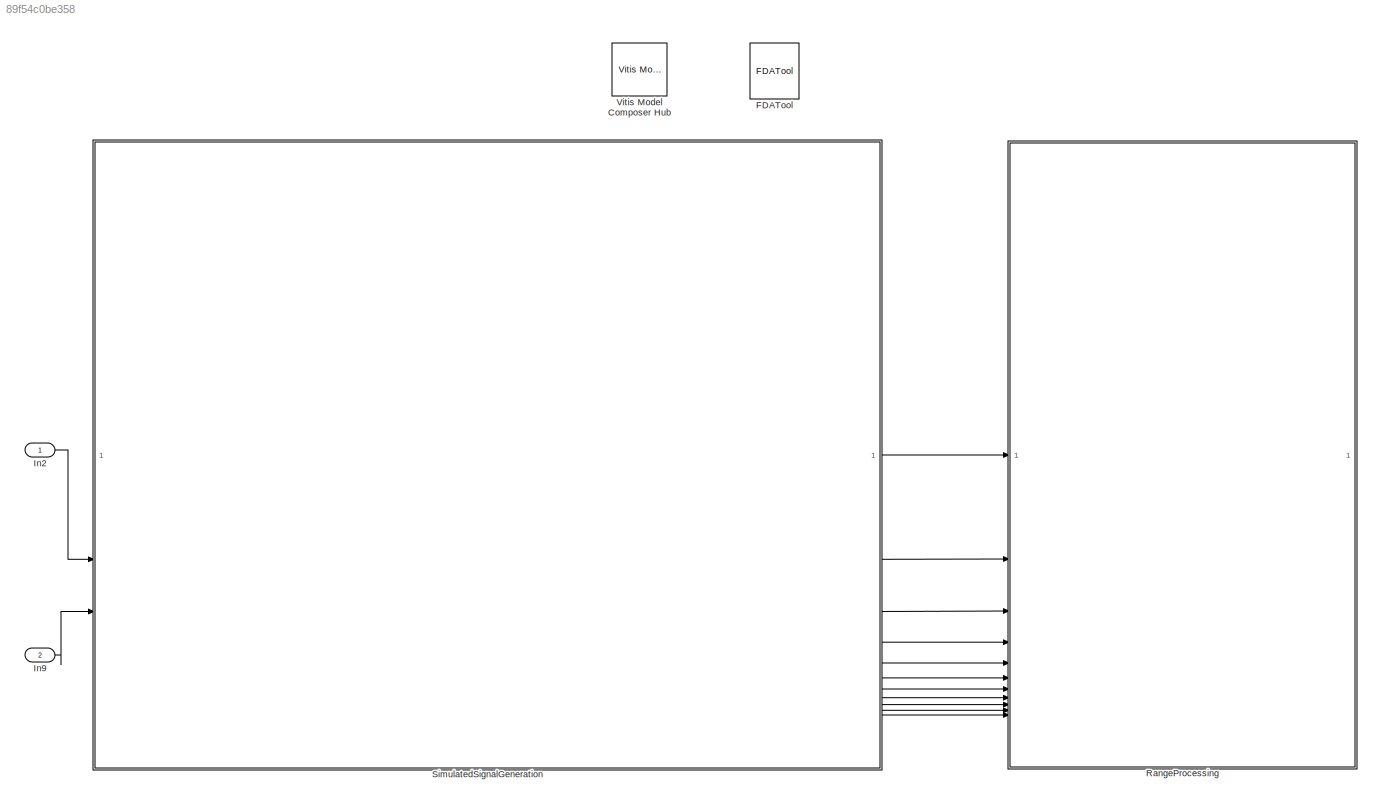
MODEL slx_89f54c0be358
KIND model
CONFIG AbsTol = auto
CONFIG EnableMultiTasking = off
CONFIG FixedStep = auto
CONFIG MaxStep = auto
CONFIG MinStep = auto
CONFIG RelTol = 1e-3
CONFIG SampleTimeConstraint = Unconstrained
CONFIG SolverName = VariableStepAuto
CONFIG StartTime = 0.0
CONFIG StopTime = 0.001
BLOCK [Reference] FDATool  REF=hdlUtilities/FDATool
  SourceBlock = hdlUtilities/FDATool
  SourceType = Xilinx FDATool Interface Block
  UserDataPersistent = on
BLOCK [Inport] In2
BLOCK [Inport] In9
  Port = 2
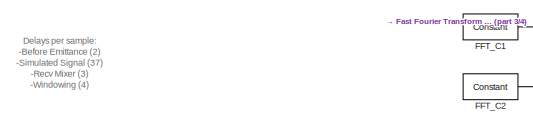
[diagram: RangeProcessing - part 1/4, top center region]
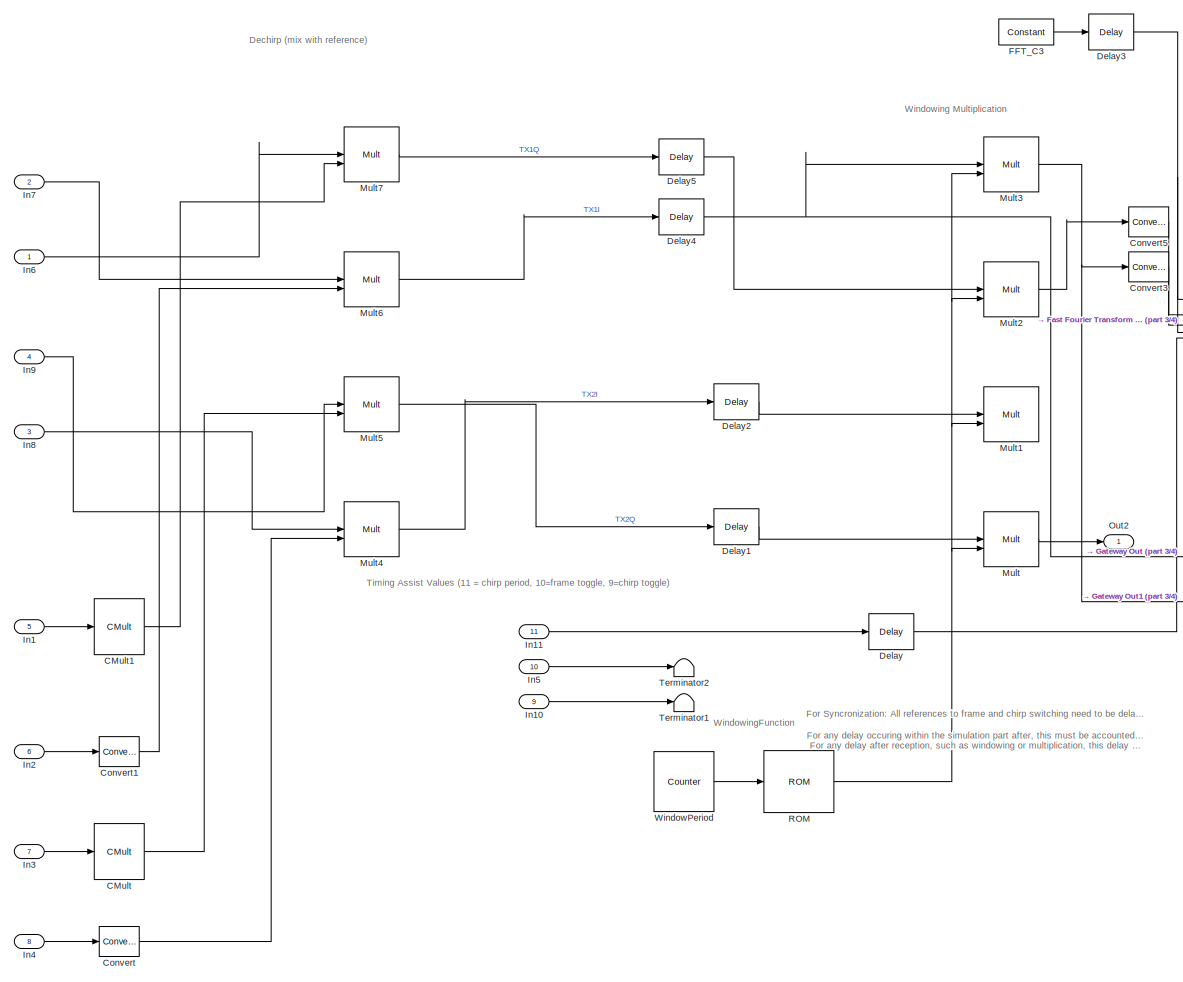
[diagram: RangeProcessing - part 2/4, left side, full height]
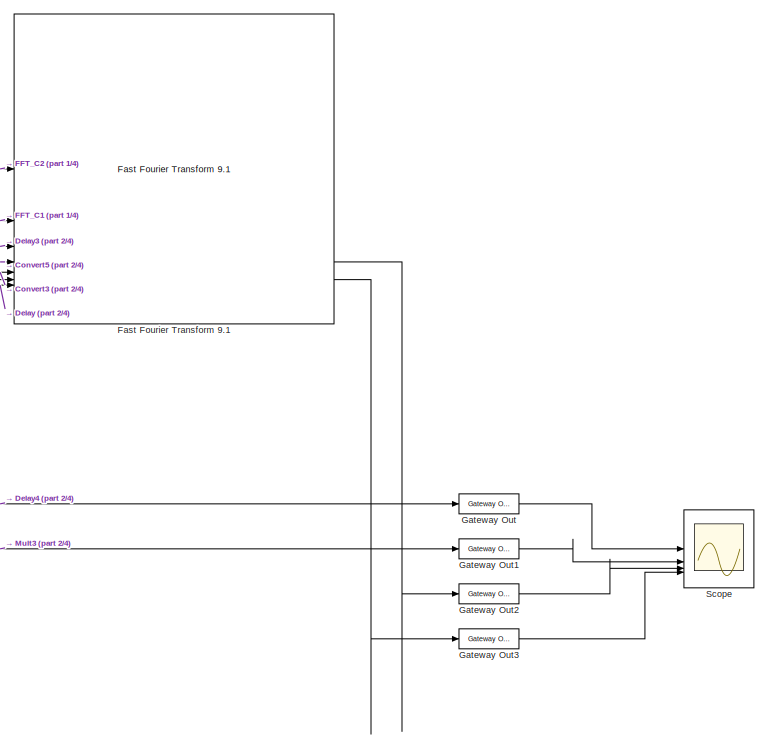
[diagram: RangeProcessing - part 3/4, middle right region]
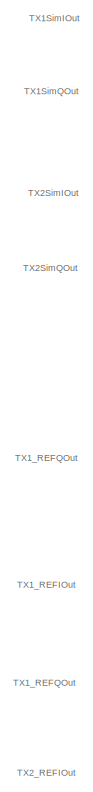
[diagram: RangeProcessing - part 4/4, middle left region]
BLOCK [SubSystem] RangeProcessing
BLOCK [Reference] RangeProcessing/CMult  REF=hdlBasic/CMult
  SourceBlock = hdlBasic/CMult
  SourceType = Constant Multiplier Block
BLOCK [Reference] RangeProcessing/CMult1  REF=hdlBasic/CMult
  SourceBlock = hdlBasic/CMult
  SourceType = Constant Multiplier Block
BLOCK [Reference] RangeProcessing/Convert  REF=hdlBasic/Convert
  SourceBlock = hdlBasic/Convert
  SourceType = Type Converter Block
BLOCK [Reference] RangeProcessing/Convert1  REF=hdlBasic/Convert
  SourceBlock = hdlBasic/Convert
  SourceType = Type Converter Block
BLOCK [Reference] RangeProcessing/Convert3  REF=hdlBasic/Convert
  SourceBlock = hdlBasic/Convert
  SourceType = Type Converter Block
BLOCK [Reference] RangeProcessing/Convert5  REF=hdlBasic/Convert
  SourceBlock = hdlBasic/Convert
  SourceType = Type Converter Block
BLOCK [Reference] RangeProcessing/Delay  REF=hdlBasic/Delay
  SourceBlock = hdlBasic/Delay
  SourceType = Delay Block
BLOCK [Reference] RangeProcessing/Delay1  REF=hdlBasic/Delay
  SourceBlock = hdlBasic/Delay
  SourceType = Delay Block
BLOCK [Reference] RangeProcessing/Delay2  REF=hdlBasic/Delay
  SourceBlock = hdlBasic/Delay
  SourceType = Delay Block
BLOCK [Reference] RangeProcessing/Delay3  REF=hdlBasic/Delay
  SourceBlock = hdlBasic/Delay
  SourceType = Delay Block
BLOCK [Reference] RangeProcessing/Delay4  REF=hdlBasic/Delay
  SourceBlock = hdlBasic/Delay
  SourceType = Delay Block
BLOCK [Reference] RangeProcessing/Delay5  REF=hdlBasic/Delay
  SourceBlock = hdlBasic/Delay
  SourceType = Delay Block
BLOCK [Reference] RangeProcessing/FFT_C1  REF=hdlBasic/Constant
  SourceBlock = hdlBasic/Constant
  SourceType = Constant Block Block
BLOCK [Reference] RangeProcessing/FFT_C2  REF=hdlBasic/Constant
  SourceBlock = hdlBasic/Constant
  SourceType = Constant Block Block
BLOCK [Reference] RangeProcessing/FFT_C3  REF=hdlBasic/Constant
  SourceBlock = hdlBasic/Constant
  SourceType = Constant Block Block
BLOCK [Reference] RangeProcessing/Fast Fourier Transform 9.1  REF=hdlDSPIP/Fast Fourier Transform 9.1 
  SourceBlock = hdlDSPIP/Fast Fourier Transform 9.1
  SourceType = Fast Fourier Transform 9.1  Block
BLOCK [Reference] RangeProcessing/Gateway Out  REF=hdlBasic/Gateway Out
  SourceBlock = hdlBasic/Gateway Out
  SourceType = Gateway Out Block
BLOCK [Reference] RangeProcessing/Gateway Out1  REF=hdlBasic/Gateway Out
  SourceBlock = hdlBasic/Gateway Out
  SourceType = Gateway Out Block
BLOCK [Reference] RangeProcessing/Gateway Out2  REF=hdlBasic/Gateway Out
  SourceBlock = hdlBasic/Gateway Out
  SourceType = Gateway Out Block
BLOCK [Reference] RangeProcessing/Gateway Out3  REF=hdlBasic/Gateway Out
  SourceBlock = hdlBasic/Gateway Out
  SourceType = Gateway Out Block
BLOCK [Inport] RangeProcessing/In1
  Port = 5
BLOCK [Inport] RangeProcessing/In10
  Port = 9
BLOCK [Inport] RangeProcessing/In11
  Port = 11
BLOCK [Inport] RangeProcessing/In2
  Port = 6
BLOCK [Inport] RangeProcessing/In3
  Port = 7
BLOCK [Inport] RangeProcessing/In4
  Port = 8
BLOCK [Inport] RangeProcessing/In5
  Port = 10
BLOCK [Inport] RangeProcessing/In6
BLOCK [Inport] RangeProcessing/In7
  Port = 2
BLOCK [Inport] RangeProcessing/In8
  Port = 3
BLOCK [Inport] RangeProcessing/In9
  Port = 4
BLOCK [Reference] RangeProcessing/Mult  REF=hdlBasic/Mult
  SourceBlock = hdlBasic/Mult
  SourceType = Multiplier Block
BLOCK [Reference] RangeProcessing/Mult1  REF=hdlBasic/Mult
  SourceBlock = hdlBasic/Mult
  SourceType = Multiplier Block
BLOCK [Reference] RangeProcessing/Mult2  REF=hdlBasic/Mult
  SourceBlock = hdlBasic/Mult
  SourceType = Multiplier Block
BLOCK [Reference] RangeProcessing/Mult3  REF=hdlBasic/Mult
  SourceBlock = hdlBasic/Mult
  SourceType = Multiplier Block
BLOCK [Reference] RangeProcessing/Mult4  REF=hdlBasic/Mult
  SourceBlock = hdlBasic/Mult
  SourceType = Multiplier Block
BLOCK [Reference] RangeProcessing/Mult5  REF=hdlBasic/Mult
  SourceBlock = hdlBasic/Mult
  SourceType = Multiplier Block
BLOCK [Reference] RangeProcessing/Mult6  REF=hdlBasic/Mult
  SourceBlock = hdlBasic/Mult
  SourceType = Multiplier Block
BLOCK [Reference] RangeProcessing/Mult7  REF=hdlBasic/Mult
  SourceBlock = hdlBasic/Mult
  SourceType = Multiplier Block
BLOCK [Outport] RangeProcessing/Out2
BLOCK [Reference] RangeProcessing/ROM  REF=hdlBasic/ROM
  SourceBlock = hdlBasic/ROM
  SourceType = Single Port Read-Only Memory Block
BLOCK [Scope] RangeProcessing/Scope
  Floating = off
  NumInputPorts = 4
  ScopeSpecificationString = Simulink.scopes.TimeScopeBlockCfg('CurrentConfiguration', extmgr.ConfigurationSet(extmgr.Configuration('Core','General UI',true),extmgr.Configuration('Core','Source UI',true),extmgr.Configuration('Sources','WiredSimulink',true),extmgr.Configuration('Visuals','Time Domain',true,'SerializedDisplays',{struct('MinYLimReal','-1.24977','MaxYLimReal','1.24977','YLabelReal','','MinYLimMag','0.00000','MaxY...<+4192ch>
BLOCK [Terminator] RangeProcessing/Terminator1
BLOCK [Terminator] RangeProcessing/Terminator2
BLOCK [Reference] RangeProcessing/WindowPeriod  REF=hdlBasic/Counter
  SourceBlock = hdlBasic/Counter
  SourceType = Counter Block
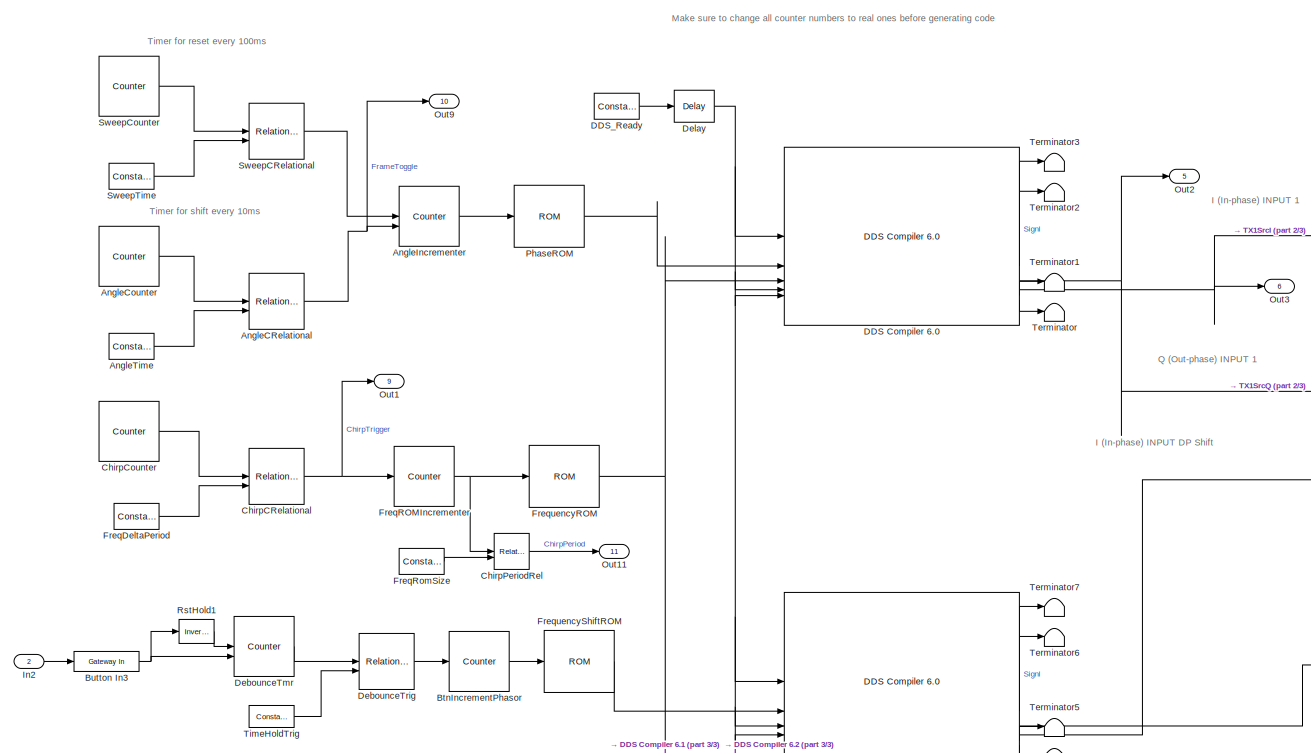
[diagram: SimulatedSignalGeneration - part 1/3, middle left region]
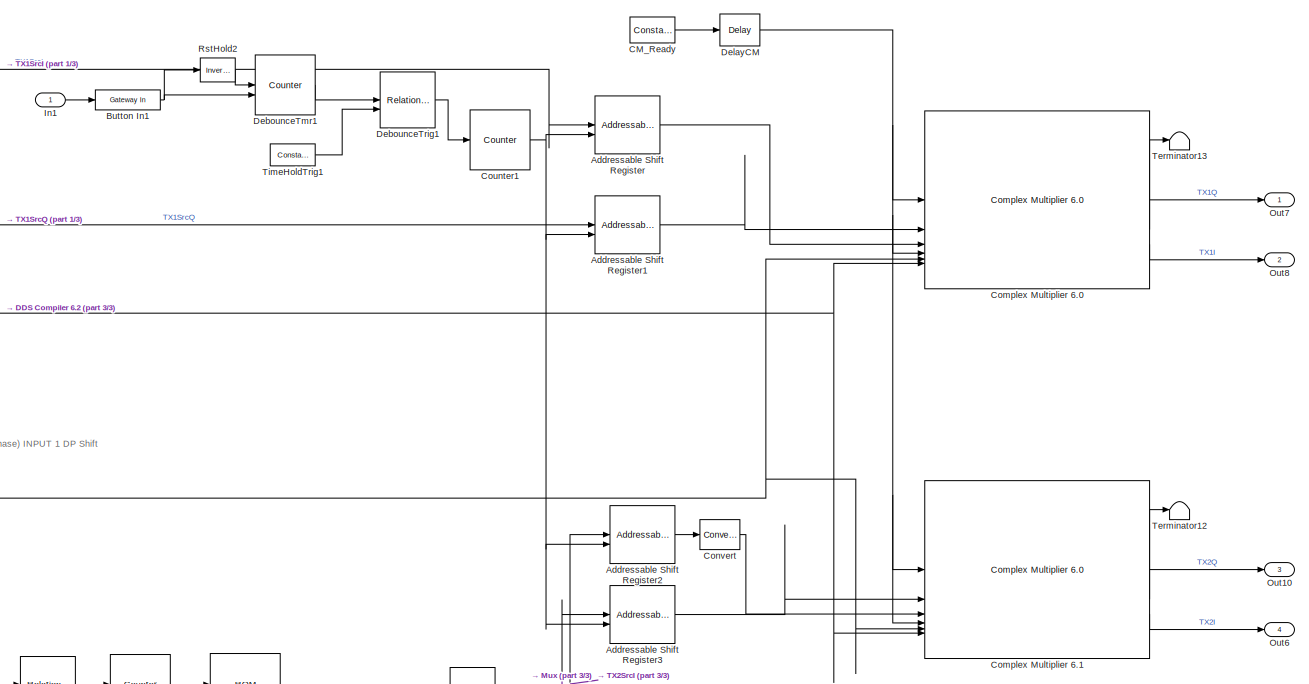
[diagram: SimulatedSignalGeneration - part 2/3, middle right region]
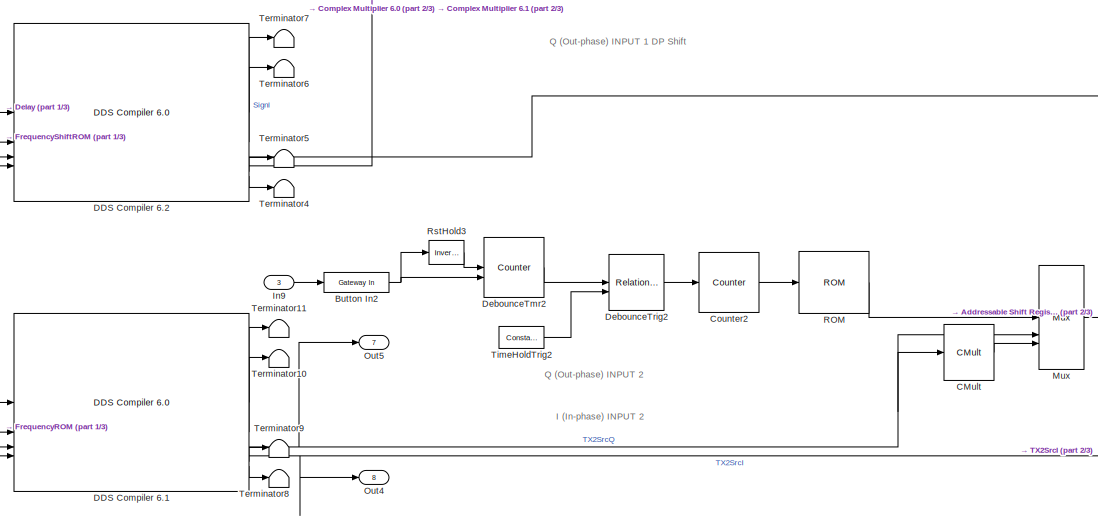
[diagram: SimulatedSignalGeneration - part 3/3, bottom center region]
BLOCK [SubSystem] SimulatedSignalGeneration
  SystemSampleTime = 1/200e6
BLOCK [Reference] SimulatedSignalGeneration/Addressable Shift Register  REF=hdlBasic/Addressable Shift Register
  SourceBlock = hdlBasic/Addressable Shift Register
  SourceType = Addressable Shift Register Block
BLOCK [Reference] SimulatedSignalGeneration/Addressable Shift Register1  REF=hdlBasic/Addressable Shift Register
  SourceBlock = hdlBasic/Addressable Shift Register
  SourceType = Addressable Shift Register Block
BLOCK [Reference] SimulatedSignalGeneration/Addressable Shift Register2  REF=hdlBasic/Addressable Shift Register
  SourceBlock = hdlBasic/Addressable Shift Register
  SourceType = Addressable Shift Register Block
BLOCK [Reference] SimulatedSignalGeneration/Addressable Shift Register3  REF=hdlBasic/Addressable Shift Register
  SourceBlock = hdlBasic/Addressable Shift Register
  SourceType = Addressable Shift Register Block
BLOCK [Reference] SimulatedSignalGeneration/AngleCRelational  REF=hdlBasic/Relational
  SourceBlock = hdlBasic/Relational
  SourceType = Arithmetic Relational Operator Block
BLOCK [Reference] SimulatedSignalGeneration/AngleCounter  REF=hdlBasic/Counter
  SourceBlock = hdlBasic/Counter
  SourceType = Counter Block
BLOCK [Reference] SimulatedSignalGeneration/AngleIncrementer  REF=hdlBasic/Counter
  SourceBlock = hdlBasic/Counter
  SourceType = Counter Block
BLOCK [Reference] SimulatedSignalGeneration/AngleTime  REF=hdlBasic/Constant
  SourceBlock = hdlBasic/Constant
  SourceType = Constant Block Block
BLOCK [Reference] SimulatedSignalGeneration/BtnIncrementPhasor  REF=hdlBasic/Counter
  SourceBlock = hdlBasic/Counter
  SourceType = Counter Block
BLOCK [Reference] SimulatedSignalGeneration/Button In1  REF=hdlBasic/Gateway In
  SourceBlock = hdlBasic/Gateway In
  SourceType = Gateway In Block
BLOCK [Reference] SimulatedSignalGeneration/Button In2  REF=hdlBasic/Gateway In
  SourceBlock = hdlBasic/Gateway In
  SourceType = Gateway In Block
BLOCK [Reference] SimulatedSignalGeneration/Button In3  REF=hdlBasic/Gateway In
  SourceBlock = hdlBasic/Gateway In
  SourceType = Gateway In Block
BLOCK [Reference] SimulatedSignalGeneration/CM_Ready  REF=hdlBasic/Constant
  SourceBlock = hdlBasic/Constant
  SourceType = Constant Block Block
BLOCK [Reference] SimulatedSignalGeneration/CMult  REF=hdlBasic/CMult
  SourceBlock = hdlBasic/CMult
  SourceType = Constant Multiplier Block
BLOCK [Reference] SimulatedSignalGeneration/ChirpCRelational  REF=hdlBasic/Relational
  SourceBlock = hdlBasic/Relational
  SourceType = Arithmetic Relational Operator Block
BLOCK [Reference] SimulatedSignalGeneration/ChirpCounter  REF=hdlBasic/Counter
  SourceBlock = hdlBasic/Counter
  SourceType = Counter Block
BLOCK [Reference] SimulatedSignalGeneration/ChirpPeriodRel  REF=hdlBasic/Relational
  SourceBlock = hdlBasic/Relational
  SourceType = Arithmetic Relational Operator Block
BLOCK [Reference] SimulatedSignalGeneration/Complex Multiplier 6.0  REF=hdlDSPIP/Complex Multiplier 6.0 
  SourceBlock = hdlDSPIP/Complex Multiplier 6.0
  SourceType = Complex Multiplier 6.0  Block
BLOCK [Reference] SimulatedSignalGeneration/Complex Multiplier 6.1  REF=hdlDSPIP/Complex Multiplier 6.0 
  SourceBlock = hdlDSPIP/Complex Multiplier 6.0
  SourceType = Complex Multiplier 6.0  Block
BLOCK [Reference] SimulatedSignalGeneration/Convert  REF=hdlBasic/Convert
  SourceBlock = hdlBasic/Convert
  SourceType = Type Converter Block
BLOCK [Reference] SimulatedSignalGeneration/Counter1  REF=hdlBasic/Counter
  SourceBlock = hdlBasic/Counter
  SourceType = Counter Block
BLOCK [Reference] SimulatedSignalGeneration/Counter2  REF=hdlBasic/Counter
  SourceBlock = hdlBasic/Counter
  SourceType = Counter Block
BLOCK [Reference] SimulatedSignalGeneration/DDS Compiler 6.0  REF=hdlDSPIP/DDS Compiler 6.0 
  SourceBlock = hdlDSPIP/DDS Compiler 6.0
  SourceType = DDS Compiler 6.0 Block
BLOCK [Reference] SimulatedSignalGeneration/DDS Compiler 6.1  REF=hdlDSPIP/DDS Compiler 6.0 
  SourceBlock = hdlDSPIP/DDS Compiler 6.0
  SourceType = DDS Compiler 6.0 Block
BLOCK [Reference] SimulatedSignalGeneration/DDS Compiler 6.2  REF=hdlDSPIP/DDS Compiler 6.0 
  SourceBlock = hdlDSPIP/DDS Compiler 6.0
  SourceType = DDS Compiler 6.0 Block
BLOCK [Reference] SimulatedSignalGeneration/DDS_Ready  REF=hdlBasic/Constant
  SourceBlock = hdlBasic/Constant
  SourceType = Constant Block Block
BLOCK [Reference] SimulatedSignalGeneration/DebounceTmr  REF=hdlBasic/Counter
  SourceBlock = hdlBasic/Counter
  SourceType = Counter Block
BLOCK [Reference] SimulatedSignalGeneration/DebounceTmr1  REF=hdlBasic/Counter
  SourceBlock = hdlBasic/Counter
  SourceType = Counter Block
BLOCK [Reference] SimulatedSignalGeneration/DebounceTmr2  REF=hdlBasic/Counter
  SourceBlock = hdlBasic/Counter
  SourceType = Counter Block
BLOCK [Reference] SimulatedSignalGeneration/DebounceTrig  REF=hdlBasic/Relational
  SourceBlock = hdlBasic/Relational
  SourceType = Arithmetic Relational Operator Block
BLOCK [Reference] SimulatedSignalGeneration/DebounceTrig1  REF=hdlBasic/Relational
  SourceBlock = hdlBasic/Relational
  SourceType = Arithmetic Relational Operator Block
BLOCK [Reference] SimulatedSignalGeneration/DebounceTrig2  REF=hdlBasic/Relational
  SourceBlock = hdlBasic/Relational
  SourceType = Arithmetic Relational Operator Block
BLOCK [Reference] SimulatedSignalGeneration/Delay  REF=hdlBasic/Delay
  SourceBlock = hdlBasic/Delay
  SourceType = Delay Block
BLOCK [Reference] SimulatedSignalGeneration/DelayCM  REF=hdlBasic/Delay
  SourceBlock = hdlBasic/Delay
  SourceType = Delay Block
BLOCK [Reference] SimulatedSignalGeneration/FreqDeltaPeriod  REF=hdlBasic/Constant
  SourceBlock = hdlBasic/Constant
  SourceType = Constant Block Block
BLOCK [Reference] SimulatedSignalGeneration/FreqROMIncrementer  REF=hdlBasic/Counter
  SourceBlock = hdlBasic/Counter
  SourceType = Counter Block
BLOCK [Reference] SimulatedSignalGeneration/FreqRomSize  REF=hdlBasic/Constant
  SourceBlock = hdlBasic/Constant
  SourceType = Constant Block Block
BLOCK [Reference] SimulatedSignalGeneration/FrequencyROM  REF=hdlBasic/ROM
  SourceBlock = hdlBasic/ROM
  SourceType = Single Port Read-Only Memory Block
BLOCK [Reference] SimulatedSignalGeneration/FrequencyShiftROM  REF=hdlBasic/ROM
  SourceBlock = hdlBasic/ROM
  SourceType = Single Port Read-Only Memory Block
BLOCK [Inport] SimulatedSignalGeneration/In1
BLOCK [Inport] SimulatedSignalGeneration/In2
  Port = 2
BLOCK [Inport] SimulatedSignalGeneration/In9
  Port = 3
BLOCK [Reference] SimulatedSignalGeneration/Mux  REF=hdlBasic/Mux
  SourceBlock = hdlBasic/Mux
  SourceType = Bus Multiplexer Block
BLOCK [Outport] SimulatedSignalGeneration/Out1
  Port = 9
BLOCK [Outport] SimulatedSignalGeneration/Out10
  Port = 3
BLOCK [Outport] SimulatedSignalGeneration/Out11
  Port = 11
BLOCK [Outport] SimulatedSignalGeneration/Out2
  Port = 5
BLOCK [Outport] SimulatedSignalGeneration/Out3
  Port = 6
BLOCK [Outport] SimulatedSignalGeneration/Out4
  Port = 8
BLOCK [Outport] SimulatedSignalGeneration/Out5
  Port = 7
BLOCK [Outport] SimulatedSignalGeneration/Out6
  Port = 4
BLOCK [Outport] SimulatedSignalGeneration/Out7
BLOCK [Outport] SimulatedSignalGeneration/Out8
  Port = 2
BLOCK [Outport] SimulatedSignalGeneration/Out9
  Port = 10
BLOCK [Reference] SimulatedSignalGeneration/PhaseROM  REF=hdlBasic/ROM
  SourceBlock = hdlBasic/ROM
  SourceType = Single Port Read-Only Memory Block
BLOCK [Reference] SimulatedSignalGeneration/ROM  REF=hdlBasic/ROM
  SourceBlock = hdlBasic/ROM
  SourceType = Single Port Read-Only Memory Block
BLOCK [Reference] SimulatedSignalGeneration/RstHold1  REF=hdlBasic/Inverter
  SourceBlock = hdlBasic/Inverter
  SourceType = Inverter Block
BLOCK [Reference] SimulatedSignalGeneration/RstHold2  REF=hdlBasic/Inverter
  SourceBlock = hdlBasic/Inverter
  SourceType = Inverter Block
BLOCK [Reference] SimulatedSignalGeneration/RstHold3  REF=hdlBasic/Inverter
  SourceBlock = hdlBasic/Inverter
  SourceType = Inverter Block
BLOCK [Reference] SimulatedSignalGeneration/SweepCRelational  REF=hdlBasic/Relational
  SourceBlock = hdlBasic/Relational
  SourceType = Arithmetic Relational Operator Block
BLOCK [Reference] SimulatedSignalGeneration/SweepCounter  REF=hdlBasic/Counter
  SourceBlock = hdlBasic/Counter
  SourceType = Counter Block
BLOCK [Reference] SimulatedSignalGeneration/SweepTime  REF=hdlBasic/Constant
  SourceBlock = hdlBasic/Constant
  SourceType = Constant Block Block
BLOCK [Terminator] SimulatedSignalGeneration/Terminator
BLOCK [Terminator] SimulatedSignalGeneration/Terminator1
BLOCK [Terminator] SimulatedSignalGeneration/Terminator10
BLOCK [Terminator] SimulatedSignalGeneration/Terminator11
BLOCK [Terminator] SimulatedSignalGeneration/Terminator12
BLOCK [Terminator] SimulatedSignalGeneration/Terminator13
BLOCK [Terminator] SimulatedSignalGeneration/Terminator2
BLOCK [Terminator] SimulatedSignalGeneration/Terminator3
BLOCK [Terminator] SimulatedSignalGeneration/Terminator4
BLOCK [Terminator] SimulatedSignalGeneration/Terminator5
BLOCK [Terminator] SimulatedSignalGeneration/Terminator6
BLOCK [Terminator] SimulatedSignalGeneration/Terminator7
BLOCK [Terminator] SimulatedSignalGeneration/Terminator8
BLOCK [Terminator] SimulatedSignalGeneration/Terminator9
BLOCK [Reference] SimulatedSignalGeneration/TimeHoldTrig  REF=hdlBasic/Constant
  SourceBlock = hdlBasic/Constant
  SourceType = Constant Block Block
BLOCK [Reference] SimulatedSignalGeneration/TimeHoldTrig1  REF=hdlBasic/Constant
  SourceBlock = hdlBasic/Constant
  SourceType = Constant Block Block
BLOCK [Reference] SimulatedSignalGeneration/TimeHoldTrig2  REF=hdlBasic/Constant
  SourceBlock = hdlBasic/Constant
  SourceType = Constant Block Block
BLOCK [Reference] Vitis Model Composer Hub  REF=vmcUtilities/Vitis Model Composer Hub
  SourceBlock = vmcUtilities/Vitis Model Composer Hub
  SourceType = VMC Hub
  Tag = genX
  UserDataPersistent = on
ANNOTATION RangeProcessing: Delays per sample: -Before Emittance (2) -Simulated Signal (37) -Recv Mixer (3) -Windowing (4)
ANNOTATION RangeProcessing: Dechirp (mix with reference)
ANNOTATION RangeProcessing: For Syncronization: All references to frame and chirp switching need to be delayed only by the amount of delay between when it is called to toggle, and when it leaves the radar system. For any delay occuring within the simulation part after, this must be accounted for in the addressable shift register (delay) which simulates range delay. This delay has nothing to do with determinng when a chirp or...<+398ch>
ANNOTATION RangeProcessing: TX1SimIOut
ANNOTATION RangeProcessing: TX1SimQOut
ANNOTATION RangeProcessing: TX1_REFIOut
ANNOTATION RangeProcessing: TX1_REFQOut
ANNOTATION RangeProcessing: TX2SimIOut
ANNOTATION RangeProcessing: TX2SimQOut
ANNOTATION RangeProcessing: TX2_REFIOut
ANNOTATION RangeProcessing: Timing Assist Values (11 = chirp period, 10=frame toggle, 9=chirp toggle)
ANNOTATION RangeProcessing: Windowing Multiplication
ANNOTATION RangeProcessing: WindowingFunction
ANNOTATION SimulatedSignalGeneration: Make sure to change all counter numbers to real ones before generating code
ANNOTATION SimulatedSignalGeneration: I (In-phase) INPUT 1
ANNOTATION SimulatedSignalGeneration: I (In-phase) INPUT 2
ANNOTATION SimulatedSignalGeneration: I (In-phase) INPUT DP Shift
ANNOTATION SimulatedSignalGeneration: Q (Out-phase) INPUT 1
ANNOTATION SimulatedSignalGeneration: Q (Out-phase) INPUT 1 DP Shift
ANNOTATION SimulatedSignalGeneration: Q (Out-phase) INPUT 2
ANNOTATION SimulatedSignalGeneration: Timer for reset every 100ms
ANNOTATION SimulatedSignalGeneration: Timer for shift every 10ms
LINE In2:1 -> SimulatedSignalGeneration:2
LINE In9:1 -> SimulatedSignalGeneration:3
LINE RangeProcessing/CMult1:1 -> RangeProcessing/Mult7:2
LINE RangeProcessing/CMult:1 -> RangeProcessing/Mult5:2
LINE RangeProcessing/Convert1:1 -> RangeProcessing/Mult6:2
LINE RangeProcessing/Convert3:1 -> RangeProcessing/Fast Fourier Transform 9.1:5
LINE RangeProcessing/Convert5:1 -> RangeProcessing/Fast Fourier Transform 9.1:4
LINE RangeProcessing/Convert:1 -> RangeProcessing/Mult4:2
LINE RangeProcessing/Delay1:1 -> RangeProcessing/Mult:1
LINE RangeProcessing/Delay2:1 -> RangeProcessing/Mult1:1
NET RangeProcessing/Delay3:1 -> RangeProcessing/Fast Fourier Transform 9.1:3, RangeProcessing/Fast Fourier Transform 9.1:6
NET RangeProcessing/Delay4:1 -> RangeProcessing/Gateway Out:1, RangeProcessing/Mult3:1
LINE RangeProcessing/Delay5:1 -> RangeProcessing/Mult2:1
LINE RangeProcessing/Delay:1 -> RangeProcessing/Fast Fourier Transform 9.1:7
LINE RangeProcessing/FFT_C1:1 -> RangeProcessing/Fast Fourier Transform 9.1:2
LINE RangeProcessing/FFT_C2:1 -> RangeProcessing/Fast Fourier Transform 9.1:1
LINE RangeProcessing/FFT_C3:1 -> RangeProcessing/Delay3:1
LINE RangeProcessing/Fast Fourier Transform 9.1:4 -> RangeProcessing/Gateway Out2:1
LINE RangeProcessing/Fast Fourier Transform 9.1:6 -> RangeProcessing/Gateway Out3:1
LINE RangeProcessing/Gateway Out1:1 -> RangeProcessing/Scope:2
LINE RangeProcessing/Gateway Out2:1 -> RangeProcessing/Scope:3
LINE RangeProcessing/Gateway Out3:1 -> RangeProcessing/Scope:4
LINE RangeProcessing/Gateway Out:1 -> RangeProcessing/Scope:1
LINE RangeProcessing/In10:1 -> RangeProcessing/Terminator1:1
LINE RangeProcessing/In11:1 -> RangeProcessing/Delay:1
LINE RangeProcessing/In1:1 -> RangeProcessing/CMult1:1
LINE RangeProcessing/In2:1 -> RangeProcessing/Convert1:1
LINE RangeProcessing/In3:1 -> RangeProcessing/CMult:1
LINE RangeProcessing/In4:1 -> RangeProcessing/Convert:1
LINE RangeProcessing/In5:1 -> RangeProcessing/Terminator2:1
LINE RangeProcessing/In6:1 -> RangeProcessing/Mult7:1
LINE RangeProcessing/In7:1 -> RangeProcessing/Mult6:1
LINE RangeProcessing/In8:1 -> RangeProcessing/Mult4:1
LINE RangeProcessing/In9:1 -> RangeProcessing/Mult5:1
LINE RangeProcessing/Mult2:1 -> RangeProcessing/Convert5:1
NET RangeProcessing/Mult3:1 -> RangeProcessing/Convert3:1, RangeProcessing/Gateway Out1:1
LINE RangeProcessing/Mult4:1 -> RangeProcessing/Delay2:1
LINE RangeProcessing/Mult5:1 -> RangeProcessing/Delay1:1
LINE RangeProcessing/Mult6:1 -> RangeProcessing/Delay4:1
LINE RangeProcessing/Mult7:1 -> RangeProcessing/Delay5:1
LINE RangeProcessing/Mult:1 -> RangeProcessing/Out2:1
NET RangeProcessing/ROM:1 -> RangeProcessing/Mult1:2, RangeProcessing/Mult2:2, RangeProcessing/Mult3:2, RangeProcessing/Mult:2
LINE RangeProcessing/WindowPeriod:1 -> RangeProcessing/ROM:1
LINE SimulatedSignalGeneration/Addressable Shift Register1:1 -> SimulatedSignalGeneration/Complex Multiplier 6.0:2
LINE SimulatedSignalGeneration/Addressable Shift Register2:1 -> SimulatedSignalGeneration/Convert:1
LINE SimulatedSignalGeneration/Addressable Shift Register3:1 -> SimulatedSignalGeneration/Complex Multiplier 6.1:2
LINE SimulatedSignalGeneration/Addressable Shift Register:1 -> SimulatedSignalGeneration/Complex Multiplier 6.0:3
NET SimulatedSignalGeneration/AngleCRelational:1 -> SimulatedSignalGeneration/AngleIncrementer:2, SimulatedSignalGeneration/Out9:1
LINE SimulatedSignalGeneration/AngleCounter:1 -> SimulatedSignalGeneration/AngleCRelational:1
LINE SimulatedSignalGeneration/AngleIncrementer:1 -> SimulatedSignalGeneration/PhaseROM:1
LINE SimulatedSignalGeneration/AngleTime:1 -> SimulatedSignalGeneration/AngleCRelational:2
LINE SimulatedSignalGeneration/BtnIncrementPhasor:1 -> SimulatedSignalGeneration/FrequencyShiftROM:1
NET SimulatedSignalGeneration/Button In1:1 -> SimulatedSignalGeneration/DebounceTmr1:2, SimulatedSignalGeneration/RstHold2:1
NET SimulatedSignalGeneration/Button In2:1 -> SimulatedSignalGeneration/DebounceTmr2:2, SimulatedSignalGeneration/RstHold3:1
NET SimulatedSignalGeneration/Button In3:1 -> SimulatedSignalGeneration/DebounceTmr:2, SimulatedSignalGeneration/RstHold1:1
LINE SimulatedSignalGeneration/CM_Ready:1 -> SimulatedSignalGeneration/DelayCM:1
LINE SimulatedSignalGeneration/CMult:1 -> SimulatedSignalGeneration/Mux:3
NET SimulatedSignalGeneration/ChirpCRelational:1 -> SimulatedSignalGeneration/FreqROMIncrementer:1, SimulatedSignalGeneration/Out1:1
LINE SimulatedSignalGeneration/ChirpCounter:1 -> SimulatedSignalGeneration/ChirpCRelational:1
LINE SimulatedSignalGeneration/ChirpPeriodRel:1 -> SimulatedSignalGeneration/Out11:1
LINE SimulatedSignalGeneration/Complex Multiplier 6.0:1 -> SimulatedSignalGeneration/Terminator13:1
LINE SimulatedSignalGeneration/Complex Multiplier 6.0:2 -> SimulatedSignalGeneration/Out7:1
LINE SimulatedSignalGeneration/Complex Multiplier 6.0:3 -> SimulatedSignalGeneration/Out8:1
LINE SimulatedSignalGeneration/Complex Multiplier 6.1:1 -> SimulatedSignalGeneration/Terminator12:1
LINE SimulatedSignalGeneration/Complex Multiplier 6.1:2 -> SimulatedSignalGeneration/Out10:1
LINE SimulatedSignalGeneration/Complex Multiplier 6.1:3 -> SimulatedSignalGeneration/Out6:1
LINE SimulatedSignalGeneration/Convert:1 -> SimulatedSignalGeneration/Complex Multiplier 6.1:3
NET SimulatedSignalGeneration/Counter1:1 -> SimulatedSignalGeneration/Addressable Shift Register1:2, SimulatedSignalGeneration/Addressable Shift Register2:2, SimulatedSignalGeneration/Addressable Shift Register3:2, SimulatedSignalGeneration/Addressable Shift Register:2
LINE SimulatedSignalGeneration/Counter2:1 -> SimulatedSignalGeneration/ROM:1
LINE SimulatedSignalGeneration/DDS Compiler 6.0:1 -> SimulatedSignalGeneration/Terminator3:1
LINE SimulatedSignalGeneration/DDS Compiler 6.0:2 -> SimulatedSignalGeneration/Terminator2:1
NET SimulatedSignalGeneration/DDS Compiler 6.0:3 -> SimulatedSignalGeneration/Addressable Shift Register1:1, SimulatedSignalGeneration/Out2:1
NET SimulatedSignalGeneration/DDS Compiler 6.0:4 -> SimulatedSignalGeneration/Addressable Shift Register:1, SimulatedSignalGeneration/Out3:1
LINE SimulatedSignalGeneration/DDS Compiler 6.0:5 -> SimulatedSignalGeneration/Terminator1:1
LINE SimulatedSignalGeneration/DDS Compiler 6.0:6 -> SimulatedSignalGeneration/Terminator:1
LINE SimulatedSignalGeneration/DDS Compiler 6.1:1 -> SimulatedSignalGeneration/Terminator11:1
LINE SimulatedSignalGeneration/DDS Compiler 6.1:2 -> SimulatedSignalGeneration/Terminator10:1
NET SimulatedSignalGeneration/DDS Compiler 6.1:3 -> SimulatedSignalGeneration/CMult:1, SimulatedSignalGeneration/Mux:2, SimulatedSignalGeneration/Out5:1
NET SimulatedSignalGeneration/DDS Compiler 6.1:4 -> SimulatedSignalGeneration/Addressable Shift Register2:1, SimulatedSignalGeneration/Out4:1
LINE SimulatedSignalGeneration/DDS Compiler 6.1:5 -> SimulatedSignalGeneration/Terminator9:1
LINE SimulatedSignalGeneration/DDS Compiler 6.1:6 -> SimulatedSignalGeneration/Terminator8:1
LINE SimulatedSignalGeneration/DDS Compiler 6.2:1 -> SimulatedSignalGeneration/Terminator7:1
LINE SimulatedSignalGeneration/DDS Compiler 6.2:2 -> SimulatedSignalGeneration/Terminator6:1
NET SimulatedSignalGeneration/DDS Compiler 6.2:3 -> SimulatedSignalGeneration/Complex Multiplier 6.0:5, SimulatedSignalGeneration/Complex Multiplier 6.1:5
NET SimulatedSignalGeneration/DDS Compiler 6.2:4 -> SimulatedSignalGeneration/Complex Multiplier 6.0:6, SimulatedSignalGeneration/Complex Multiplier 6.1:6
LINE SimulatedSignalGeneration/DDS Compiler 6.2:5 -> SimulatedSignalGeneration/Terminator5:1
LINE SimulatedSignalGeneration/DDS Compiler 6.2:6 -> SimulatedSignalGeneration/Terminator4:1
LINE SimulatedSignalGeneration/DDS_Ready:1 -> SimulatedSignalGeneration/Delay:1
LINE SimulatedSignalGeneration/DebounceTmr1:1 -> SimulatedSignalGeneration/DebounceTrig1:1
LINE SimulatedSignalGeneration/DebounceTmr2:1 -> SimulatedSignalGeneration/DebounceTrig2:1
LINE SimulatedSignalGeneration/DebounceTmr:1 -> SimulatedSignalGeneration/DebounceTrig:1
LINE SimulatedSignalGeneration/DebounceTrig1:1 -> SimulatedSignalGeneration/Counter1:1
LINE SimulatedSignalGeneration/DebounceTrig2:1 -> SimulatedSignalGeneration/Counter2:1
LINE SimulatedSignalGeneration/DebounceTrig:1 -> SimulatedSignalGeneration/BtnIncrementPhasor:1
NET SimulatedSignalGeneration/Delay:1 -> SimulatedSignalGeneration/DDS Compiler 6.0:1, SimulatedSignalGeneration/DDS Compiler 6.0:4, SimulatedSignalGeneration/DDS Compiler 6.0:5, SimulatedSignalGeneration/DDS Compiler 6.1:1, SimulatedSignalGeneration/DDS Compiler 6.1:3, SimulatedSignalGeneration/DDS Compiler 6.1:4, SimulatedSignalGeneration/DDS Compiler 6.2:1, SimulatedSignalGeneration/DDS Compiler 6.2:3, SimulatedSignalGeneration/DDS Compiler 6.2:4
NET SimulatedSignalGeneration/DelayCM:1 -> SimulatedSignalGeneration/Complex Multiplier 6.0:1, SimulatedSignalGeneration/Complex Multiplier 6.0:4, SimulatedSignalGeneration/Complex Multiplier 6.1:1, SimulatedSignalGeneration/Complex Multiplier 6.1:4
LINE SimulatedSignalGeneration/FreqDeltaPeriod:1 -> SimulatedSignalGeneration/ChirpCRelational:2
NET SimulatedSignalGeneration/FreqROMIncrementer:1 -> SimulatedSignalGeneration/ChirpPeriodRel:1, SimulatedSignalGeneration/FrequencyROM:1
LINE SimulatedSignalGeneration/FreqRomSize:1 -> SimulatedSignalGeneration/ChirpPeriodRel:2
NET SimulatedSignalGeneration/FrequencyROM:1 -> SimulatedSignalGeneration/DDS Compiler 6.0:3, SimulatedSignalGeneration/DDS Compiler 6.1:2
LINE SimulatedSignalGeneration/FrequencyShiftROM:1 -> SimulatedSignalGeneration/DDS Compiler 6.2:2
LINE SimulatedSignalGeneration/In1:1 -> SimulatedSignalGeneration/Button In1:1
LINE SimulatedSignalGeneration/In2:1 -> SimulatedSignalGeneration/Button In3:1
LINE SimulatedSignalGeneration/In9:1 -> SimulatedSignalGeneration/Button In2:1
LINE SimulatedSignalGeneration/Mux:1 -> SimulatedSignalGeneration/Addressable Shift Register3:1
LINE SimulatedSignalGeneration/PhaseROM:1 -> SimulatedSignalGeneration/DDS Compiler 6.0:2
LINE SimulatedSignalGeneration/ROM:1 -> SimulatedSignalGeneration/Mux:1
LINE SimulatedSignalGeneration/RstHold1:1 -> SimulatedSignalGeneration/DebounceTmr:1
LINE SimulatedSignalGeneration/RstHold2:1 -> SimulatedSignalGeneration/DebounceTmr1:1
LINE SimulatedSignalGeneration/RstHold3:1 -> SimulatedSignalGeneration/DebounceTmr2:1
LINE SimulatedSignalGeneration/SweepCRelational:1 -> SimulatedSignalGeneration/AngleIncrementer:1
LINE SimulatedSignalGeneration/SweepCounter:1 -> SimulatedSignalGeneration/SweepCRelational:1
LINE SimulatedSignalGeneration/SweepTime:1 -> SimulatedSignalGeneration/SweepCRelational:2
LINE SimulatedSignalGeneration/TimeHoldTrig1:1 -> SimulatedSignalGeneration/DebounceTrig1:2
LINE SimulatedSignalGeneration/TimeHoldTrig2:1 -> SimulatedSignalGeneration/DebounceTrig2:2
LINE SimulatedSignalGeneration/TimeHoldTrig:1 -> SimulatedSignalGeneration/DebounceTrig:2
LINE SimulatedSignalGeneration:1 -> RangeProcessing:1
LINE SimulatedSignalGeneration:10 -> RangeProcessing:10
LINE SimulatedSignalGeneration:11 -> RangeProcessing:11
LINE SimulatedSignalGeneration:2 -> RangeProcessing:2
LINE SimulatedSignalGeneration:3 -> RangeProcessing:3
LINE SimulatedSignalGeneration:4 -> RangeProcessing:4
LINE SimulatedSignalGeneration:5 -> RangeProcessing:5
LINE SimulatedSignalGeneration:6 -> RangeProcessing:6
LINE SimulatedSignalGeneration:7 -> RangeProcessing:7
LINE SimulatedSignalGeneration:8 -> RangeProcessing:8
LINE SimulatedSignalGeneration:9 -> RangeProcessing:9
note: NET lines group one-source signal fan-out (src -> all destinations, sorted); 1:1 wires keep LINE
